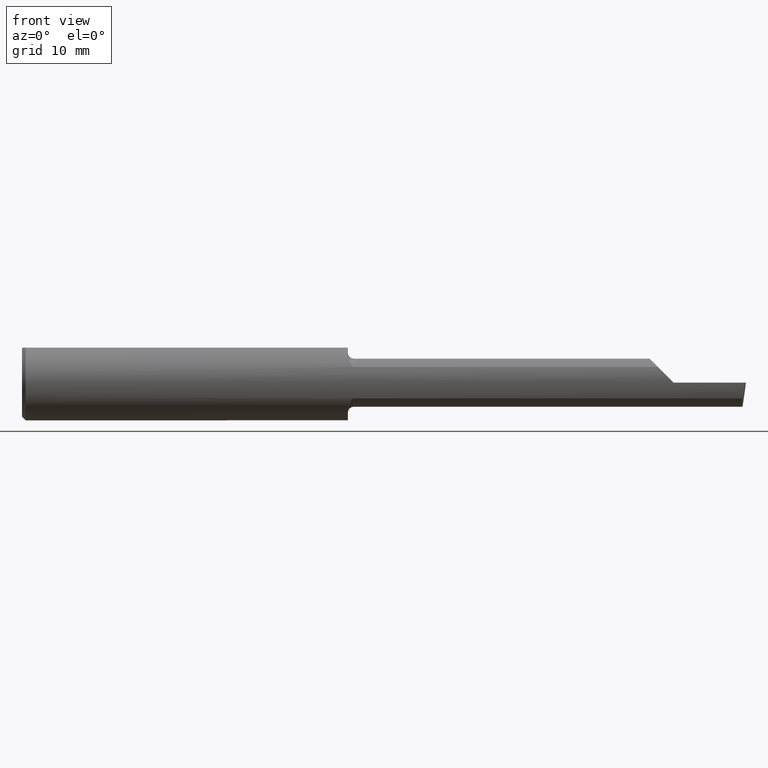
[diagram: clean part render]
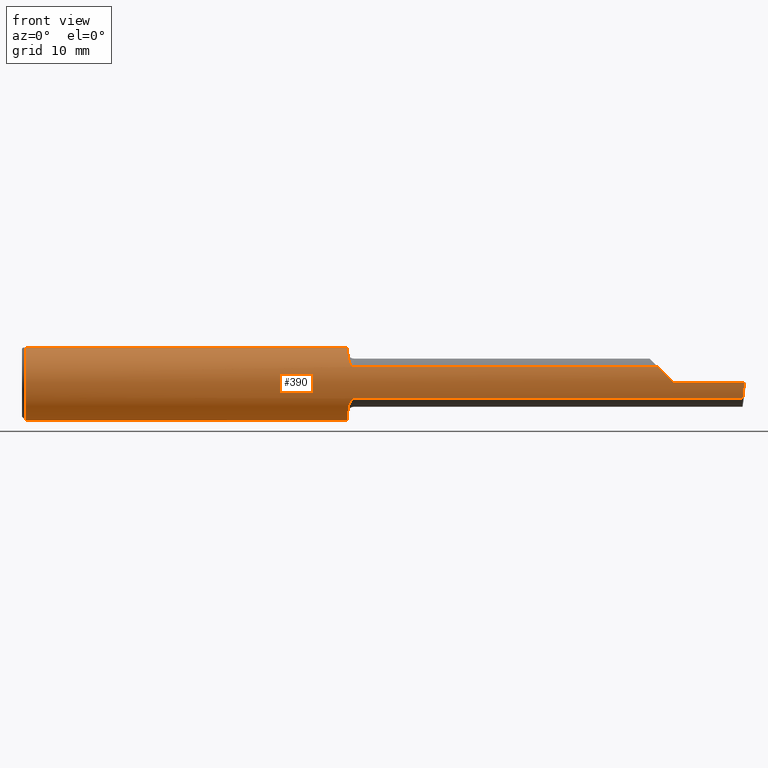
[diagram: same view with one face highlighted and labeled with its STEP entity id]
A machine part, front view. The second image highlights one B-rep face of the part: STEP entity #390.
In plain terms, the highlighted cylindrical surface (partial cylindrical patch) has radius 3.9649 mm, axis along (-1, -0, -0).
Its self-contained STEP definition (entity closure, byte-faithful):
#5 = CARTESIAN_POINT ( 'NONE',  ( 1.350000000000000311, 0.05756040305626788228, 0.1450999999999999512 ) ) ;
#16 = ORIENTED_EDGE ( 'NONE', *, *, #697, .F. ) ;
#21 = EDGE_CURVE ( 'NONE', #320, #744, #117, .T. ) ;
#22 = CARTESIAN_POINT ( 'NONE',  ( 1.373328253254594511, -0.1419939393940947703, 0.06484544066737571444 ) ) ;
#23 = VERTEX_POINT ( 'NONE', #790 ) ;
#27 = CARTESIAN_POINT ( 'NONE',  ( 1.349999999999999423, -0.1044772303701486243, -0.1161670294028995520 ) ) ;
#29 = ORIENTED_EDGE ( 'NONE', *, *, #143, .T. ) ;
#32 = CARTESIAN_POINT ( 'NONE',  ( 1.350000000000000311, -0.09941818181818193323, 0.1203463132961160309 ) ) ;
#41 = DIRECTION ( 'NONE',  ( 0.000000000000000000, 0.000000000000000000, -1.000000000000000000 ) ) ;
#50 = CARTESIAN_POINT ( 'NONE',  ( 0.01499999999999999424, -0.05756040305626774350, 0.1451000000000000068 ) ) ;
#54 = VECTOR ( 'NONE', #591, 39.37007874015748143 ) ;
#68 = DIRECTION ( 'NONE',  ( 0.000000000000000000, 0.000000000000000000, -1.000000000000000000 ) ) ;
#77 = CARTESIAN_POINT ( 'NONE',  ( 1.350000000000000311, -0.09941818181818193323, -0.1203463132961160309 ) ) ;
#78 = ORIENTED_EDGE ( 'NONE', *, *, #21, .F. ) ;
#84 = EDGE_CURVE ( 'NONE', #420, #455, #464, .T. ) ;
#88 = CARTESIAN_POINT ( 'NONE',  ( 1.352040506864490954, -0.1180407066556270063, 0.1023492120876696165 ) ) ;
#93 = AXIS2_PLACEMENT_3D ( 'NONE', #274, #206, #256 ) ;
#101 = CYLINDRICAL_SURFACE ( 'NONE', #492, 0.1560999999999999888 ) ;
#102 = VERTEX_POINT ( 'NONE', #77 ) ;
#110 = LINE ( 'NONE', #386, #808 ) ;
#112 = CARTESIAN_POINT ( 'NONE',  ( 2.635154559332284041, -0.1419939393939393946, 0.06484544066771590065 ) ) ;
#117 = CIRCLE ( 'NONE', #263, 0.1560999999999999888 ) ;
#140 = CARTESIAN_POINT ( 'NONE',  ( 2.700000000000000178, -0.1560999999999999888, -2.449293598294708386E-17 ) ) ;
#143 = EDGE_CURVE ( 'NONE', #523, #571, #688, .T. ) ;
#158 = CARTESIAN_POINT ( 'NONE',  ( 1.353262464810605969, -0.1222000088982462124, 0.09733625715976103321 ) ) ;
#162 = CARTESIAN_POINT ( 'NONE',  ( 1.363017092274625641, -0.1374043365808045869, 0.07413505991998654843 ) ) ;
#163 = B_SPLINE_CURVE_WITH_KNOTS ( 'NONE', 3,
 ( #32, #409, #290, #88, #158, #649, #336, #162, #777, #537, #227, #584, #22, #405 ),
 .UNSPECIFIED., .F., .F.,
 ( 4, 2, 2, 2, 2, 2, 4 ),
 ( 0.0001856976868807112932, 0.0006805519038525574115, 0.001175406120824403584, 0.001670260337796249757, 0.001917687446282172409, 0.002041401000525133735, 0.002165114554768095279 ),
 .UNSPECIFIED. ) ;
#166 = DIRECTION ( 'NONE',  ( -1.000000000000000000, -0.000000000000000000, -0.000000000000000000 ) ) ;
#172 = CARTESIAN_POINT ( 'NONE',  ( 2.655587570325277813, -0.1513252362624135094, 0.04441242967472188580 ) ) ;
#177 = ORIENTED_EDGE ( 'NONE', *, *, #791, .F. ) ;
#183 = EDGE_CURVE ( 'NONE', #359, #420, #439, .T. ) ;
#192 = EDGE_CURVE ( 'NONE', #596, #23, #378, .T. ) ;
#195 = VERTEX_POINT ( 'NONE', #5 ) ;
#206 = DIRECTION ( 'NONE',  ( -1.000000000000000000, -0.000000000000000000, -0.000000000000000000 ) ) ;
#214 = ORIENTED_EDGE ( 'NONE', *, *, #682, .F. ) ;
#218 = CARTESIAN_POINT ( 'NONE',  ( 1.350000000000000311, -0.09941818181818193323, -0.1203463132961160309 ) ) ;
#222 = DIRECTION ( 'NONE',  ( 0.000000000000000000, 0.000000000000000000, 1.000000000000000000 ) ) ;
#226 = CARTESIAN_POINT ( 'NONE',  ( 1.364650979716348633, -0.1387334617349067212, -0.07160083655282355186 ) ) ;
#227 = CARTESIAN_POINT ( 'NONE',  ( 1.368988484139260775, -0.1409410548628159121, 0.06710952210203038892 ) ) ;
#246 = ORIENTED_EDGE ( 'NONE', *, *, #281, .T. ) ;
#248 = CARTESIAN_POINT ( 'NONE',  ( 2.994029609882220999, -0.1561000000000000165, -6.741913824051282974E-17 ) ) ;
#249 = DIRECTION ( 'NONE',  ( -1.000000000000000000, -0.000000000000000000, -0.000000000000000000 ) ) ;
#254 =( BOUNDED_CURVE ( )  B_SPLINE_CURVE ( 3, ( #469, #792, #172, #112 ),
 .UNSPECIFIED., .F., .F. ) 
 B_SPLINE_CURVE_WITH_KNOTS ( ( 4, 4 ),
 ( 4.712388980384689674, 5.140782042693055054 ),
 .UNSPECIFIED. ) 
 CURVE ( )  GEOMETRIC_REPRESENTATION_ITEM ( )  RATIONAL_B_SPLINE_CURVE ( ( 1.000000000000000000, 0.9847649979006014576, 0.9847649979006014576, 1.000000000000000000 ) ) 
 REPRESENTATION_ITEM ( '' )  );
#255 = CARTESIAN_POINT ( 'NONE',  ( 2.986434241799654554, -0.1419939393939393391, -0.06484544066771595616 ) ) ;
#256 = DIRECTION ( 'NONE',  ( 0.000000000000000000, 0.000000000000000000, 1.000000000000000000 ) ) ;
#259 = CARTESIAN_POINT ( 'NONE',  ( 1.375000000000000222, -0.1419939393939392003, 0.06484544066771598392 ) ) ;
#260 = DIRECTION ( 'NONE',  ( -1.000000000000000000, -0.000000000000000000, -0.000000000000000000 ) ) ;
#263 = AXIS2_PLACEMENT_3D ( 'NONE', #481, #357, #68 ) ;
#273 = CARTESIAN_POINT ( 'NONE',  ( 2.986434241799654554, -0.1419939393939393391, -0.06484544066771595616 ) ) ;
#274 = CARTESIAN_POINT ( 'NONE',  ( 0.01499999999999999424, 0.000000000000000000, 0.000000000000000000 ) ) ;
#281 = EDGE_CURVE ( 'NONE', #320, #455, #718, .T. ) ;
#283 = LINE ( 'NONE', #536, #54 ) ;
#286 = CARTESIAN_POINT ( 'NONE',  ( 1.368987086440956347, -0.1409404987250980346, -0.06711069163632696344 ) ) ;
#287 = CARTESIAN_POINT ( 'NONE',  ( 1.350000000000000311, -0.05756040305626776432, 0.1451000000000000068 ) ) ;
#288 = ORIENTED_EDGE ( 'NONE', *, *, #326, .F. ) ;
#290 = CARTESIAN_POINT ( 'NONE',  ( 1.350415155711666593, -0.1091772789608304872, 0.1117554983051642081 ) ) ;
#293 = VECTOR ( 'NONE', #166, 39.37007874015748143 ) ;
#316 = DIRECTION ( 'NONE',  ( -1.000000000000000000, -0.000000000000000000, -0.000000000000000000 ) ) ;
#320 = VERTEX_POINT ( 'NONE', #287 ) ;
#326 = EDGE_CURVE ( 'NONE', #744, #631, #163, .T. ) ;
#335 = CARTESIAN_POINT ( 'NONE',  ( 1.375000000000000222, -0.1419939393939393113, -0.06484544066771588677 ) ) ;
#336 = CARTESIAN_POINT ( 'NONE',  ( 1.358665904659251300, -0.1330436853938332664, 0.08186319721956639150 ) ) ;
#348 = DIRECTION ( 'NONE',  ( 1.000000000000000000, 0.000000000000000000, 0.000000000000000000 ) ) ;
#352 = CIRCLE ( 'NONE', #504, 0.1560999999999999888 ) ;
#357 = DIRECTION ( 'NONE',  ( 1.000000000000000000, 0.000000000000000000, 0.000000000000000000 ) ) ;
#359 = VERTEX_POINT ( 'NONE', #657 ) ;
#378 = LINE ( 'NONE', #570, #545 ) ;
#382 = DIRECTION ( 'NONE',  ( 1.000000000000000000, 0.000000000000000000, 0.000000000000000000 ) ) ;
#386 = CARTESIAN_POINT ( 'NONE',  ( 0.000000000000000000, 0.05756040305626788228, 0.1450999999999999235 ) ) ;
#390 = ADVANCED_FACE ( 'NONE', ( #774 ), #101, .T. ) ;
#405 = CARTESIAN_POINT ( 'NONE',  ( 1.375000000000000222, -0.1419939393939392003, 0.06484544066771598392 ) ) ;
#409 = CARTESIAN_POINT ( 'NONE',  ( 1.350000000000000311, -0.1044500923568690148, 0.1161894481365070009 ) ) ;
#411 = ORIENTED_EDGE ( 'NONE', *, *, #192, .F. ) ;
#420 = VERTEX_POINT ( 'NONE', #799 ) ;
#434 = CARTESIAN_POINT ( 'NONE',  ( 2.991270569402208590, -0.1560999999999999888, -0.02246288137099541199 ) ) ;
#439 = CIRCLE ( 'NONE', #93, 0.1560999999999999888 ) ;
#451 = AXIS2_PLACEMENT_3D ( 'NONE', #804, #249, #489 ) ;
#455 = VERTEX_POINT ( 'NONE', #50 ) ;
#459 = CARTESIAN_POINT ( 'NONE',  ( 0.000000000000000000, 0.000000000000000000, 0.000000000000000000 ) ) ;
#464 = CIRCLE ( 'NONE', #451, 0.1560999999999999888 ) ;
#469 = CARTESIAN_POINT ( 'NONE',  ( 2.700000000000000178, -0.1560999999999999888, -2.449293598294708386E-17 ) ) ;
#481 = CARTESIAN_POINT ( 'NONE',  ( 1.350000000000000311, 0.000000000000000000, 0.000000000000000000 ) ) ;
#489 = DIRECTION ( 'NONE',  ( 0.000000000000000000, 0.000000000000000000, 1.000000000000000000 ) ) ;
#492 = AXIS2_PLACEMENT_3D ( 'NONE', #459, #592, #222 ) ;
#502 = CARTESIAN_POINT ( 'NONE',  ( 5.398554261502604010E-32, -0.1560999999999999333, 3.697364387449882376E-16 ) ) ;
#504 = AXIS2_PLACEMENT_3D ( 'NONE', #717, #348, #41 ) ;
#505 = CARTESIAN_POINT ( 'NONE',  ( 2.988699611492195984, -0.1513252362624134817, -0.04441242967472212866 ) ) ;
#517 = CARTESIAN_POINT ( 'NONE',  ( 1.371725699135996290, -0.1417275062431946620, -0.06543227863119814580 ) ) ;
#523 = VERTEX_POINT ( 'NONE', #248 ) ;
#524 = EDGE_CURVE ( 'NONE', #359, #195, #110, .T. ) ;
#525 = CARTESIAN_POINT ( 'NONE',  ( 1.353264033160802793, -0.1222037927935208795, -0.09733121088759351391 ) ) ;
#536 = CARTESIAN_POINT ( 'NONE',  ( 2.052500000000000213, -0.1419939393939393391, 0.06484544066771595616 ) ) ;
#537 = CARTESIAN_POINT ( 'NONE',  ( 1.367808428589329495, -0.1404263024719111519, 0.06818548243543454124 ) ) ;
#545 = VECTOR ( 'NONE', #260, 39.37007874015748143 ) ;
#557 = EDGE_CURVE ( 'NONE', #596, #523, #802, .T. ) ;
#562 = ORIENTED_EDGE ( 'NONE', *, *, #524, .T. ) ;
#570 = CARTESIAN_POINT ( 'NONE',  ( 2.052500000000000213, -0.1419939393939393391, -0.06484544066771595616 ) ) ;
#571 = VERTEX_POINT ( 'NONE', #140 ) ;
#572 = CARTESIAN_POINT ( 'NONE',  ( 2.994029609882220999, -0.1561000000000000165, -6.741913824051282974E-17 ) ) ;
#584 = CARTESIAN_POINT ( 'NONE',  ( 1.371727793412432117, -0.1417279534125322760, 0.06543130843947160546 ) ) ;
#587 = CARTESIAN_POINT ( 'NONE',  ( 1.352063943834880932, -0.1181307192064763312, -0.1022448908112566779 ) ) ;
#591 = DIRECTION ( 'NONE',  ( 1.000000000000000000, 0.000000000000000000, 0.000000000000000000 ) ) ;
#592 = DIRECTION ( 'NONE',  ( -1.000000000000000000, -0.000000000000000000, -0.000000000000000000 ) ) ;
#596 = VERTEX_POINT ( 'NONE', #273 ) ;
#631 = VERTEX_POINT ( 'NONE', #259 ) ;
#644 = ORIENTED_EDGE ( 'NONE', *, *, #557, .T. ) ;
#649 = CARTESIAN_POINT ( 'NONE',  ( 1.356590655429606329, -0.1296720675120677513, 0.08713405786343429715 ) ) ;
#653 = CARTESIAN_POINT ( 'NONE',  ( 2.635154559332284041, -0.1419939393939393946, 0.06484544066771590065 ) ) ;
#657 = CARTESIAN_POINT ( 'NONE',  ( 0.01499999999999999424, 0.05756040305626788228, 0.1450999999999999235 ) ) ;
#659 = CARTESIAN_POINT ( 'NONE',  ( 1.350000000000000311, -0.09941818181818193323, 0.1203463132961160309 ) ) ;
#661 = ORIENTED_EDGE ( 'NONE', *, *, #805, .T. ) ;
#664 = B_SPLINE_CURVE_WITH_KNOTS ( 'NONE', 3,
 ( #335, #780, #517, #286, #773, #226, #770, #709, #706, #525, #587, #776, #27, #218 ),
 .UNSPECIFIED., .F., .F.,
 ( 4, 2, 2, 2, 2, 2, 4 ),
 ( 1.961289441070630364E-07, 0.0001258819157031984310, 0.0002515677024622897922, 0.0005029392759804725147, 0.001005682423016829178, 0.001508425570053185732, 0.002011168717089542504 ),
 .UNSPECIFIED. ) ;
#682 = EDGE_CURVE ( 'NONE', #102, #195, #352, .T. ) ;
#688 = LINE ( 'NONE', #502, #793 ) ;
#697 = EDGE_CURVE ( 'NONE', #631, #724, #283, .T. ) ;
#701 = ORIENTED_EDGE ( 'NONE', *, *, #183, .F. ) ;
#706 = CARTESIAN_POINT ( 'NONE',  ( 1.356590010709525451, -0.1296703571699488466, -0.08713627291423986509 ) ) ;
#709 = CARTESIAN_POINT ( 'NONE',  ( 1.358682090340784132, -0.1330572531291641103, -0.08183785561185247248 ) ) ;
#710 = CARTESIAN_POINT ( 'NONE',  ( 0.000000000000000000, -0.05756040305626783371, 0.1450999999999999512 ) ) ;
#717 = CARTESIAN_POINT ( 'NONE',  ( 1.350000000000000311, 0.000000000000000000, 0.000000000000000000 ) ) ;
#718 = LINE ( 'NONE', #710, #293 ) ;
#724 = VERTEX_POINT ( 'NONE', #653 ) ;
#744 = VERTEX_POINT ( 'NONE', #659 ) ;
#770 = CARTESIAN_POINT ( 'NONE',  ( 1.362996561902688697, -0.1373850824029525519, -0.07416982835688744335 ) ) ;
#773 = CARTESIAN_POINT ( 'NONE',  ( 1.367803744158916146, -0.1404244429940954553, -0.06818941713933170112 ) ) ;
#774 = FACE_OUTER_BOUND ( 'NONE', #806, .T. ) ;
#776 = CARTESIAN_POINT ( 'NONE',  ( 1.350428134837082350, -0.1092850169809857774, -0.1116497630123361728 ) ) ;
#777 = CARTESIAN_POINT ( 'NONE',  ( 1.364666516289593012, -0.1387430930441309329, 0.07158177069671509130 ) ) ;
#780 = CARTESIAN_POINT ( 'NONE',  ( 1.373318217257565754, -0.1419939393939393946, -0.06484544066771588677 ) ) ;
#788 = ORIENTED_EDGE ( 'NONE', *, *, #84, .F. ) ;
#790 = CARTESIAN_POINT ( 'NONE',  ( 1.375000000000000222, -0.1419939393939393113, -0.06484544066771588677 ) ) ;
#791 = EDGE_CURVE ( 'NONE', #23, #102, #664, .T. ) ;
#792 = CARTESIAN_POINT ( 'NONE',  ( 2.677537118629004897, -0.1560999999999999888, 0.02246288137099516566 ) ) ;
#793 = VECTOR ( 'NONE', #316, 39.37007874015748143 ) ;
#799 = CARTESIAN_POINT ( 'NONE',  ( 0.01499999999999999424, 0.000000000000000000, -0.1560999999999999888 ) ) ;
#802 =( BOUNDED_CURVE ( )  B_SPLINE_CURVE ( 3, ( #255, #505, #434, #572 ),
 .UNSPECIFIED., .F., .F. ) 
 B_SPLINE_CURVE_WITH_KNOTS ( ( 4, 4 ),
 ( 0.9323538202067674918, 1.360746882515132761 ),
 .UNSPECIFIED. ) 
 CURVE ( )  GEOMETRIC_REPRESENTATION_ITEM ( )  RATIONAL_B_SPLINE_CURVE ( ( 1.000000000000000000, 0.9847649979006014576, 0.9847649979006014576, 1.000000000000000000 ) ) 
 REPRESENTATION_ITEM ( '' )  );
#804 = CARTESIAN_POINT ( 'NONE',  ( 0.01499999999999999424, 0.000000000000000000, 0.000000000000000000 ) ) ;
#805 = EDGE_CURVE ( 'NONE', #571, #724, #254, .T. ) ;
#806 = EDGE_LOOP ( 'NONE', ( #411, #644, #29, #661, #16, #288, #78, #246, #788, #701, #562, #214, #177 ) ) ;
#808 = VECTOR ( 'NONE', #382, 39.37007874015748143 ) ;